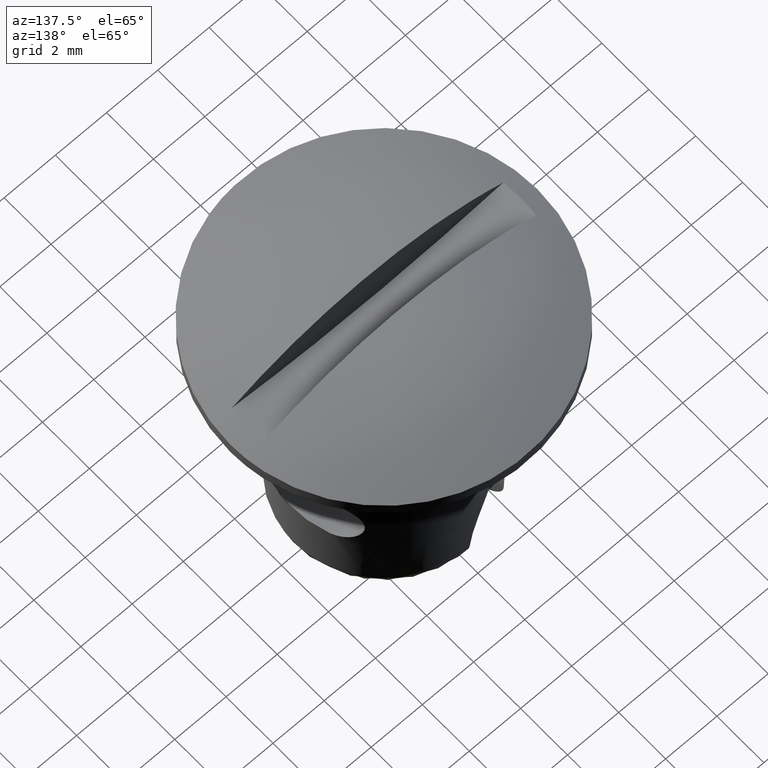
[diagram: clean part render]
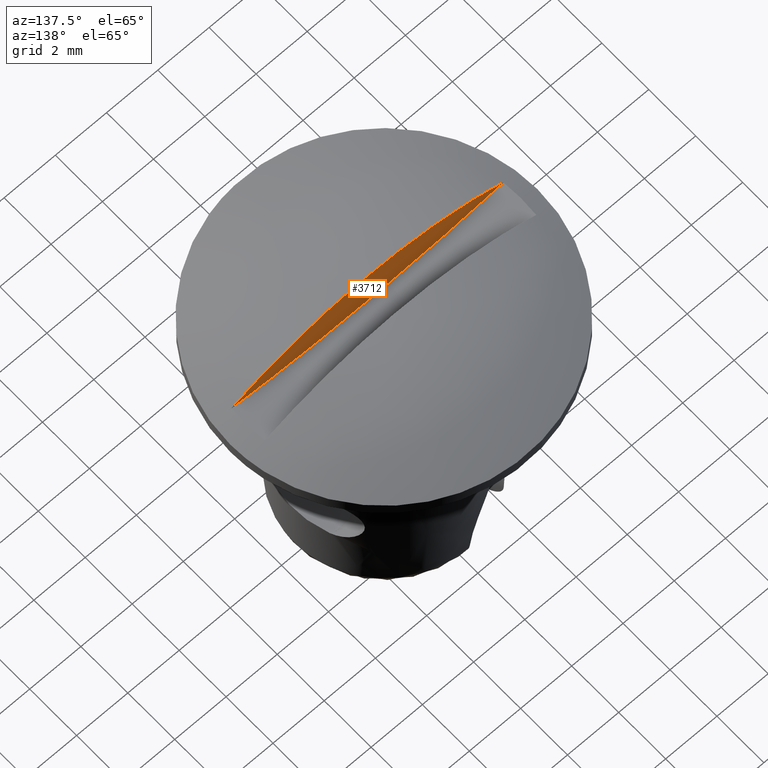
[diagram: same view with one face highlighted and labeled with its STEP entity id]
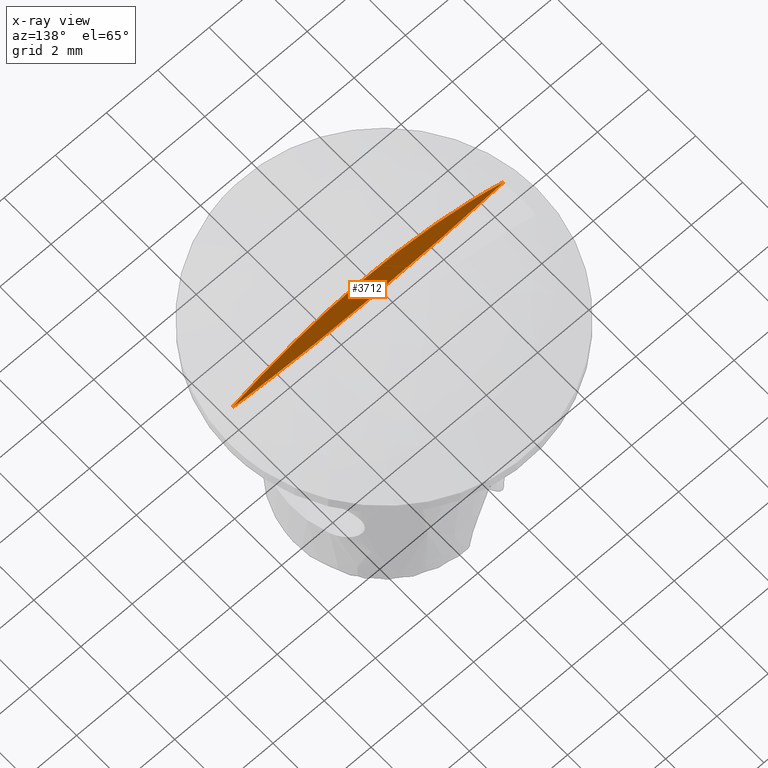
[diagram: x-ray of the same camera — body ghosted, the highlighted face saturated]
A machine part, auxiliary view. The second image highlights one B-rep face of the part: STEP entity #3712.
The next image is the same camera in x-ray: the body ghosted, the highlighted face saturated — about 0% of this face is hidden behind the body in this view.
In plain terms, the highlighted face is a freeform B-spline surface patch.
Its self-contained STEP definition (entity closure, byte-faithful):
#3675=CARTESIAN_POINT('',(-5.833388525220246,-0.699997000000000,2.262396328070630));
#3676=CARTESIAN_POINT('',(5.833388240714965,-0.699997000000000,2.262396328070630));
#3677=CARTESIAN_POINT('',(-5.833388525220246,-0.699997000000000,0.416156254483624));
#3678=CARTESIAN_POINT('',(5.833388240714965,-0.699997000000000,0.416156254483624));
#3679=B_SPLINE_SURFACE_WITH_KNOTS('',1,1,((#3675,#3677),(#3676,#3678)),.UNSPECIFIED.,.F.,.F.,.U.,(2,2),(2,2),(0.0,11.666776765935211),(0.0,1.846240073587005),.UNSPECIFIED.);
#3680=CARTESIAN_POINT('',(-5.303562853731459,-0.699997000000000,0.871922437406934));
#3681=VERTEX_POINT('',#3680);
#3682=CARTESIAN_POINT('',(5.303562853731459,-0.699997000000000,0.871922437406934));
#3683=VERTEX_POINT('',#3682);
#3684=CARTESIAN_POINT('',(-5.303562853731460,-0.699997000000008,0.871922437406934));
#3685=CARTESIAN_POINT('',(-7.806256E-015,-0.699997000000008,0.124401416789009));
#3686=CARTESIAN_POINT('',(5.303562853731451,-0.699997000000008,0.871922437406934));
#3694=(BOUNDED_CURVE()B_SPLINE_CURVE(2,(#3684,#3685,#3686),.UNSPECIFIED.,.F.,.U.)CURVE()GEOMETRIC_REPRESENTATION_ITEM()QUASI_UNIFORM_CURVE()RATIONAL_B_SPLINE_CURVE((1.0,0.990212567436660,1.0))REPRESENTATION_ITEM(''));
#3695=EDGE_CURVE('',#3681,#3683,#3694,.T.);
#3696=ORIENTED_EDGE('',*,*,#3695,.F.);
#3697=CARTESIAN_POINT('',(5.303562853731459,-0.699997000000000,0.871922437406934));
#3698=CARTESIAN_POINT('',(4.336809E-015,-0.699997000000000,3.654050891943375));
#3699=CARTESIAN_POINT('',(-5.303562853731469,-0.699997000000000,0.871922437406952));
#3707=(BOUNDED_CURVE()B_SPLINE_CURVE(2,(#3697,#3698,#3699),.UNSPECIFIED.,.F.,.U.)CURVE()GEOMETRIC_REPRESENTATION_ITEM()QUASI_UNIFORM_CURVE()RATIONAL_B_SPLINE_CURVE((1.0,0.885551927244557,1.0))REPRESENTATION_ITEM(''));
#3708=EDGE_CURVE('',#3683,#3681,#3707,.T.);
#3709=ORIENTED_EDGE('',*,*,#3708,.F.);
#3710=EDGE_LOOP('',(#3696,#3709));
#3711=FACE_OUTER_BOUND('',#3710,.T.);
#3712=ADVANCED_FACE('',(#3711),#3679,.T.);